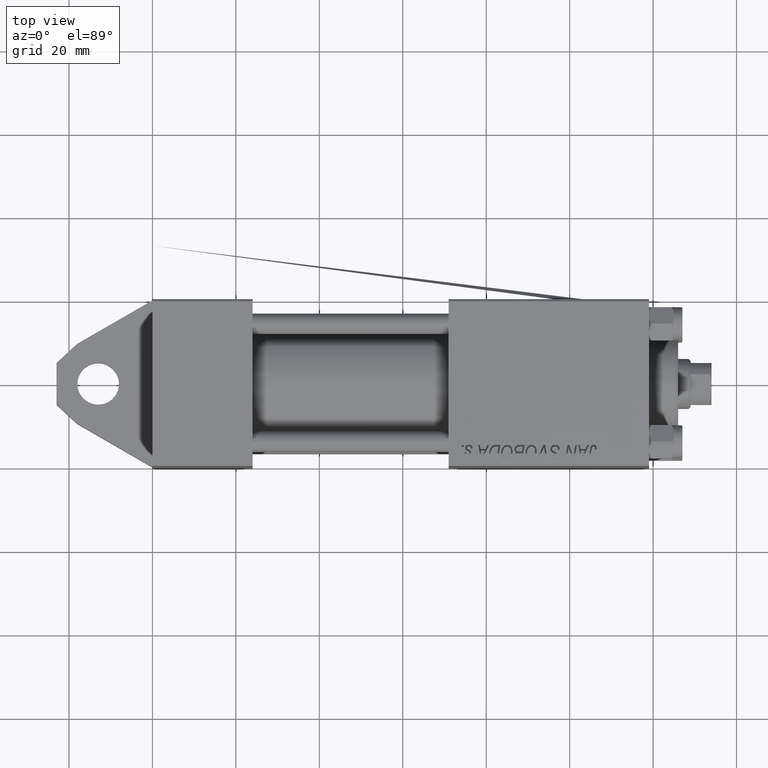
[diagram: clean part render]
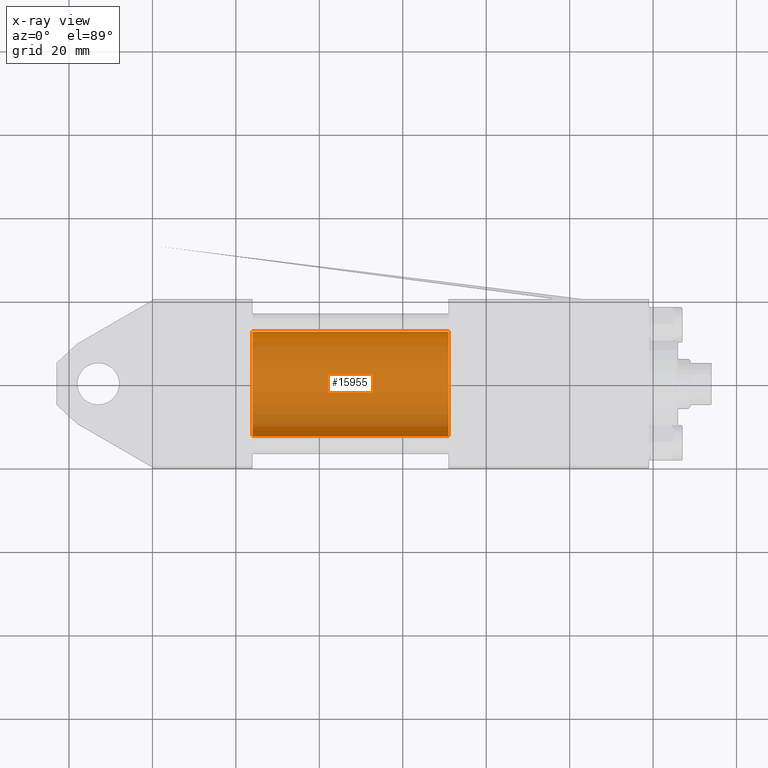
[diagram: x-ray — body ghosted, one internal face saturated and labeled with its STEP entity id]
A machine part, top view, then the same camera in x-ray: the body is ghosted and one INTERNAL B-rep face — a face not visible from any outside direction — is saturated and labeled: STEP entity #15955.
In plain terms, the highlighted cylindrical surface (partial cylindrical patch) has radius 12.5 mm, axis along (-1, -0, 0).
Its self-contained STEP definition (entity closure, byte-faithful):
#1221 = VERTEX_POINT ( 'NONE', #13225 ) ;
#3323 = EDGE_CURVE ( 'NONE', #38314, #33122, #32469, .T. ) ;
#3816 = VECTOR ( 'NONE', #12460, 1000.000000000000000 ) ;
#5439 = CARTESIAN_POINT ( 'NONE',  ( 71.00000000000001421, -1.071276715031019515E-15, -12.49999999999999645 ) ) ;
#7409 = EDGE_CURVE ( 'NONE', #1221, #19544, #23671, .T. ) ;
#7790 = DIRECTION ( 'NONE',  ( 0.000000000000000000, 0.000000000000000000, -1.000000000000000000 ) ) ;
#8113 = ORIENTED_EDGE ( 'NONE', *, *, #19486, .T. ) ;
#9012 = DIRECTION ( 'NONE',  ( -1.000000000000000000, -0.000000000000000000, -0.000000000000000000 ) ) ;
#9214 = DIRECTION ( 'NONE',  ( -1.000000000000000000, -0.000000000000000000, -0.000000000000000000 ) ) ;
#10388 = ORIENTED_EDGE ( 'NONE', *, *, #37988, .F. ) ;
#12460 = DIRECTION ( 'NONE',  ( -1.000000000000000000, -0.000000000000000000, -0.000000000000000000 ) ) ;
#12637 = ORIENTED_EDGE ( 'NONE', *, *, #7409, .F. ) ;
#13225 = CARTESIAN_POINT ( 'NONE',  ( 24.00000000000000000, -2.602085213965210642E-15, 12.49999999999999645 ) ) ;
#13270 = AXIS2_PLACEMENT_3D ( 'NONE', #32457, #14319, #7790 ) ;
#14319 = DIRECTION ( 'NONE',  ( 1.000000000000000000, 0.000000000000000000, 0.000000000000000000 ) ) ;
#15955 = ADVANCED_FACE ( 'NONE', ( #27129 ), #41097, .F. ) ;
#16892 = LINE ( 'NONE', #44361, #22081 ) ;
#17041 = CARTESIAN_POINT ( 'NONE',  ( 71.00000000000001421, -2.602085213965210642E-15, 12.49999999999999645 ) ) ;
#19486 = EDGE_CURVE ( 'NONE', #33122, #19544, #16892, .T. ) ;
#19544 = VERTEX_POINT ( 'NONE', #34147 ) ;
#19668 = CARTESIAN_POINT ( 'NONE',  ( 71.00000000000001421, -2.602085213965210642E-15, 0.000000000000000000 ) ) ;
#19716 = AXIS2_PLACEMENT_3D ( 'NONE', #19668, #9214, #40628 ) ;
#22081 = VECTOR ( 'NONE', #9012, 1000.000000000000000 ) ;
#22103 = DIRECTION ( 'NONE',  ( 0.000000000000000000, 0.000000000000000000, -1.000000000000000000 ) ) ;
#23671 = CIRCLE ( 'NONE', #13270, 12.49999999999999645 ) ;
#27129 = FACE_OUTER_BOUND ( 'NONE', #31051, .T. ) ;
#28017 = AXIS2_PLACEMENT_3D ( 'NONE', #39795, #39346, #22103 ) ;
#30147 = LINE ( 'NONE', #44328, #3816 ) ;
#31051 = EDGE_LOOP ( 'NONE', ( #37926, #8113, #12637, #10388 ) ) ;
#32457 = CARTESIAN_POINT ( 'NONE',  ( 24.00000000000000000, -2.602085213965210642E-15, 0.000000000000000000 ) ) ;
#32469 = CIRCLE ( 'NONE', #28017, 12.49999999999999645 ) ;
#33122 = VERTEX_POINT ( 'NONE', #5439 ) ;
#34147 = CARTESIAN_POINT ( 'NONE',  ( 24.00000000000000000, -1.071276715031019515E-15, -12.49999999999999645 ) ) ;
#37926 = ORIENTED_EDGE ( 'NONE', *, *, #3323, .T. ) ;
#37988 = EDGE_CURVE ( 'NONE', #38314, #1221, #30147, .T. ) ;
#38314 = VERTEX_POINT ( 'NONE', #17041 ) ;
#39346 = DIRECTION ( 'NONE',  ( 1.000000000000000000, 0.000000000000000000, 0.000000000000000000 ) ) ;
#39795 = CARTESIAN_POINT ( 'NONE',  ( 71.00000000000001421, -2.602085213965210642E-15, 0.000000000000000000 ) ) ;
#40628 = DIRECTION ( 'NONE',  ( 0.000000000000000000, 0.000000000000000000, 1.000000000000000000 ) ) ;
#41097 = CYLINDRICAL_SURFACE ( 'NONE', #19716, 12.49999999999999645 ) ;
#44328 = CARTESIAN_POINT ( 'NONE',  ( 71.00000000000001421, -2.602085213965210642E-15, 12.49999999999999645 ) ) ;
#44361 = CARTESIAN_POINT ( 'NONE',  ( 71.00000000000001421, -1.071276715031019515E-15, -12.49999999999999645 ) ) ;